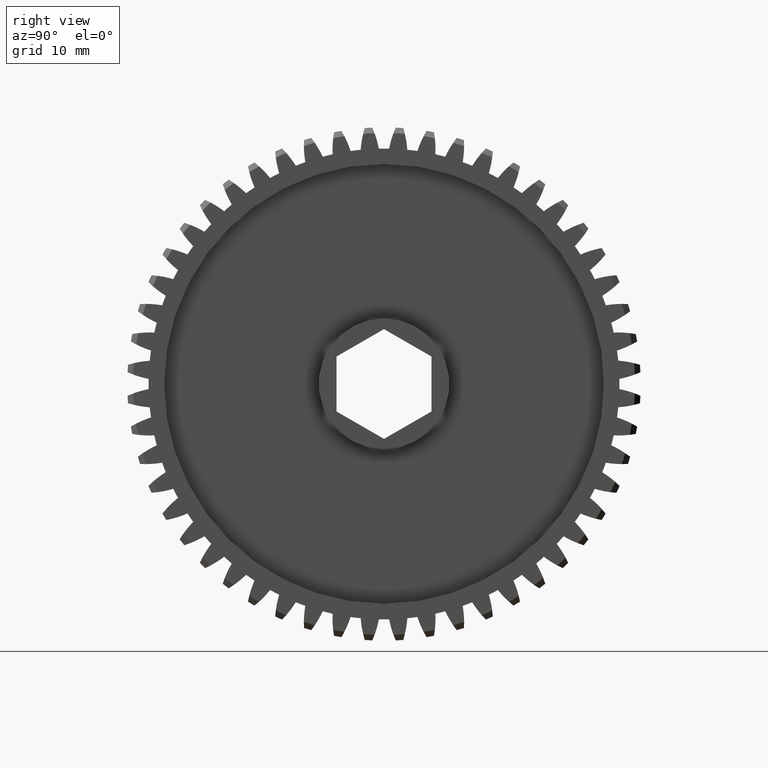
[diagram: clean part render]
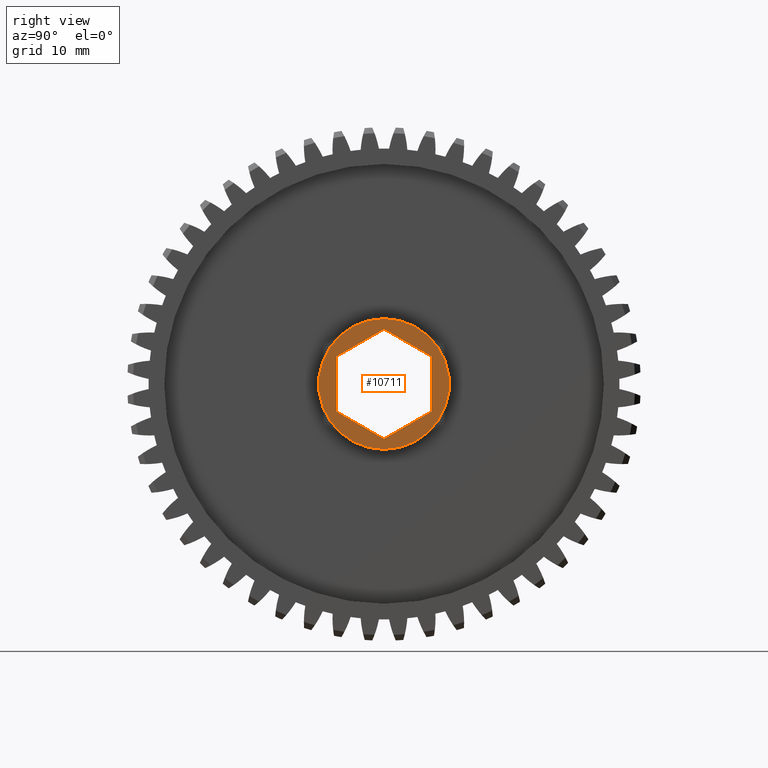
[diagram: same view with one face highlighted and labeled with its STEP entity id]
A machine part, right view. The second image highlights one B-rep face of the part: STEP entity #10711.
In plain terms, the highlighted planar face has unit normal (1, 0, 0).
Its self-contained STEP definition (entity closure, byte-faithful):
#72 = ORIENTED_EDGE ( 'NONE', *, *, #7069, .F. ) ;
#77 = VERTEX_POINT ( 'NONE', #8820 ) ;
#370 = DIRECTION ( 'NONE',  ( 1.000000000000000000, 0.0000000000000000000, 0.0000000000000000000 ) ) ;
#710 = VECTOR ( 'NONE', #737, 39.37007874015748143 ) ;
#737 = DIRECTION ( 'NONE',  ( 0.0000000000000000000, 0.0000000000000000000, 1.000000000000000000 ) ) ;
#788 = ORIENTED_EDGE ( 'NONE', *, *, #5215, .T. ) ;
#825 = EDGE_CURVE ( 'NONE', #6344, #8016, #1188, .T. ) ;
#832 = CARTESIAN_POINT ( 'NONE',  ( 0.4375000000000000555, 0.0000000000000000000, 0.3437500000000000000 ) ) ;
#962 = CARTESIAN_POINT ( 'NONE',  ( 0.4375000000000000555, 0.0000000000000000000, 0.0000000000000000000 ) ) ;
#1188 = LINE ( 'NONE', #2094, #3651 ) ;
#1257 = FACE_OUTER_BOUND ( 'NONE', #1650, .T. ) ;
#1574 = ORIENTED_EDGE ( 'NONE', *, *, #4122, .T. ) ;
#1597 = AXIS2_PLACEMENT_3D ( 'NONE', #4643, #10502, #11563 ) ;
#1650 = EDGE_LOOP ( 'NONE', ( #1574, #788 ) ) ;
#1654 = CARTESIAN_POINT ( 'NONE',  ( 0.4375000000000000555, 3.507597902705625567E-17, 0.2886751345948129210 ) ) ;
#1719 = LINE ( 'NONE', #8160, #10493 ) ;
#1942 = AXIS2_PLACEMENT_3D ( 'NONE', #962, #4707, #3643 ) ;
#2014 = VERTEX_POINT ( 'NONE', #11557 ) ;
#2094 = CARTESIAN_POINT ( 'NONE',  ( 0.4375000000000000555, 9.326636531699003467E-17, -0.2886751345948129210 ) ) ;
#2732 = CARTESIAN_POINT ( 'NONE',  ( 0.4375000000000000555, 0.2500000000000000000, 0.1443375672974064050 ) ) ;
#3154 = LINE ( 'NONE', #8190, #4641 ) ;
#3620 = VERTEX_POINT ( 'NONE', #6456 ) ;
#3643 = DIRECTION ( 'NONE',  ( 0.0000000000000000000, 0.0000000000000000000, -1.000000000000000000 ) ) ;
#3651 = VECTOR ( 'NONE', #5731, 39.37007874015748854 ) ;
#3772 = CARTESIAN_POINT ( 'NONE',  ( 0.4375000000000000555, 1.024442997624098707E-16, -0.2886751345948129210 ) ) ;
#3847 = CARTESIAN_POINT ( 'NONE',  ( 0.4375000000000000555, 0.2500000000000000000, 0.1443375672974064050 ) ) ;
#3879 = ORIENTED_EDGE ( 'NONE', *, *, #4652, .F. ) ;
#4084 = ORIENTED_EDGE ( 'NONE', *, *, #8904, .F. ) ;
#4122 = EDGE_CURVE ( 'NONE', #6104, #2014, #4864, .T. ) ;
#4248 = VERTEX_POINT ( 'NONE', #7874 ) ;
#4366 = CARTESIAN_POINT ( 'NONE',  ( 0.4375000000000000555, 0.2500000000000000000, -0.1443375672974063773 ) ) ;
#4632 = CARTESIAN_POINT ( 'NONE',  ( 0.4375000000000000555, 0.2500000000000000000, -0.1443375672974063773 ) ) ;
#4641 = VECTOR ( 'NONE', #5857, 39.37007874015748854 ) ;
#4643 = CARTESIAN_POINT ( 'NONE',  ( 0.4375000000000000555, 0.0000000000000000000, 0.0000000000000000000 ) ) ;
#4652 = EDGE_CURVE ( 'NONE', #4248, #6344, #3154, .T. ) ;
#4707 = DIRECTION ( 'NONE',  ( 1.000000000000000000, 0.0000000000000000000, 0.0000000000000000000 ) ) ;
#4864 = CIRCLE ( 'NONE', #1597, 0.3437500000000000000 ) ;
#5200 = VECTOR ( 'NONE', #5295, 39.37007874015748143 ) ;
#5215 = EDGE_CURVE ( 'NONE', #2014, #6104, #9743, .T. ) ;
#5248 = DIRECTION ( 'NONE',  ( 0.0000000000000000000, 0.0000000000000000000, -1.000000000000000000 ) ) ;
#5295 = DIRECTION ( 'NONE',  ( 0.0000000000000000000, -0.8660254037844383745, -0.5000000000000003331 ) ) ;
#5424 = AXIS2_PLACEMENT_3D ( 'NONE', #5793, #370, #8552 ) ;
#5731 = DIRECTION ( 'NONE',  ( 0.0000000000000000000, 0.8660254037844384856, 0.5000000000000003331 ) ) ;
#5793 = CARTESIAN_POINT ( 'NONE',  ( 0.4375000000000000555, 0.0000000000000000000, 0.0000000000000000000 ) ) ;
#5857 = DIRECTION ( 'NONE',  ( 0.0000000000000000000, 0.8660254037844385966, -0.4999999999999998335 ) ) ;
#6104 = VERTEX_POINT ( 'NONE', #832 ) ;
#6344 = VERTEX_POINT ( 'NONE', #3772 ) ;
#6456 = CARTESIAN_POINT ( 'NONE',  ( 0.4375000000000000555, -0.2500000000000000000, 0.1443375672974063217 ) ) ;
#6689 = FACE_BOUND ( 'NONE', #10702, .T. ) ;
#6787 = ORIENTED_EDGE ( 'NONE', *, *, #825, .F. ) ;
#7069 = EDGE_CURVE ( 'NONE', #3620, #4248, #1719, .T. ) ;
#7340 = ORIENTED_EDGE ( 'NONE', *, *, #10945, .F. ) ;
#7869 = VERTEX_POINT ( 'NONE', #3847 ) ;
#7874 = CARTESIAN_POINT ( 'NONE',  ( 0.4375000000000000555, -0.2500000000000000000, -0.1443375672974064605 ) ) ;
#8005 = LINE ( 'NONE', #4366, #710 ) ;
#8016 = VERTEX_POINT ( 'NONE', #4632 ) ;
#8021 = LINE ( 'NONE', #1654, #5200 ) ;
#8047 = EDGE_CURVE ( 'NONE', #7869, #77, #10920, .T. ) ;
#8159 = DIRECTION ( 'NONE',  ( 0.0000000000000000000, -0.8660254037844385966, 0.5000000000000001110 ) ) ;
#8160 = CARTESIAN_POINT ( 'NONE',  ( 0.4375000000000000555, -0.2500000000000000000, 0.1443375672974063217 ) ) ;
#8190 = CARTESIAN_POINT ( 'NONE',  ( 0.4375000000000000555, -0.2500000000000000000, -0.1443375672974064605 ) ) ;
#8552 = DIRECTION ( 'NONE',  ( 0.0000000000000000000, 0.0000000000000000000, -1.000000000000000000 ) ) ;
#8820 = CARTESIAN_POINT ( 'NONE',  ( 0.4375000000000000555, 3.507597902705625567E-17, 0.2886751345948129210 ) ) ;
#8904 = EDGE_CURVE ( 'NONE', #8016, #7869, #8005, .T. ) ;
#9351 = VECTOR ( 'NONE', #8159, 39.37007874015748854 ) ;
#9468 = PLANE ( 'NONE',  #5424 ) ;
#9743 = CIRCLE ( 'NONE', #1942, 0.3437500000000000000 ) ;
#10493 = VECTOR ( 'NONE', #5248, 39.37007874015748143 ) ;
#10502 = DIRECTION ( 'NONE',  ( 1.000000000000000000, 0.0000000000000000000, 0.0000000000000000000 ) ) ;
#10697 = ORIENTED_EDGE ( 'NONE', *, *, #8047, .F. ) ;
#10702 = EDGE_LOOP ( 'NONE', ( #3879, #72, #7340, #10697, #4084, #6787 ) ) ;
#10711 = ADVANCED_FACE ( 'NONE', ( #6689, #1257 ), #9468, .T. ) ;
#10920 = LINE ( 'NONE', #2732, #9351 ) ;
#10945 = EDGE_CURVE ( 'NONE', #77, #3620, #8021, .T. ) ;
#11557 = CARTESIAN_POINT ( 'NONE',  ( 0.4375000000000000555, 4.209723372069026264E-17, -0.3437500000000000000 ) ) ;
#11563 = DIRECTION ( 'NONE',  ( 0.0000000000000000000, 0.0000000000000000000, -1.000000000000000000 ) ) ;